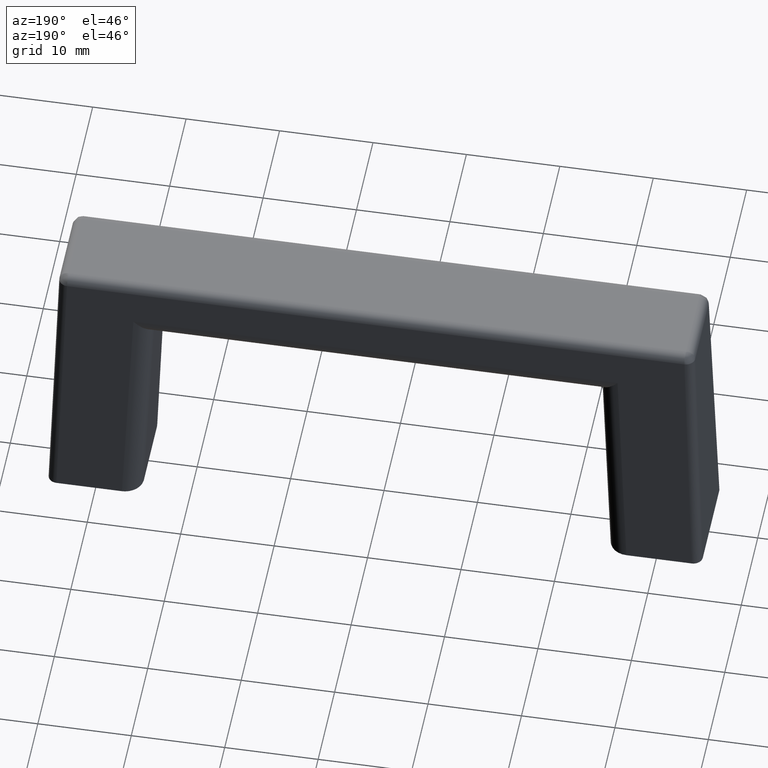
[diagram: clean part render]
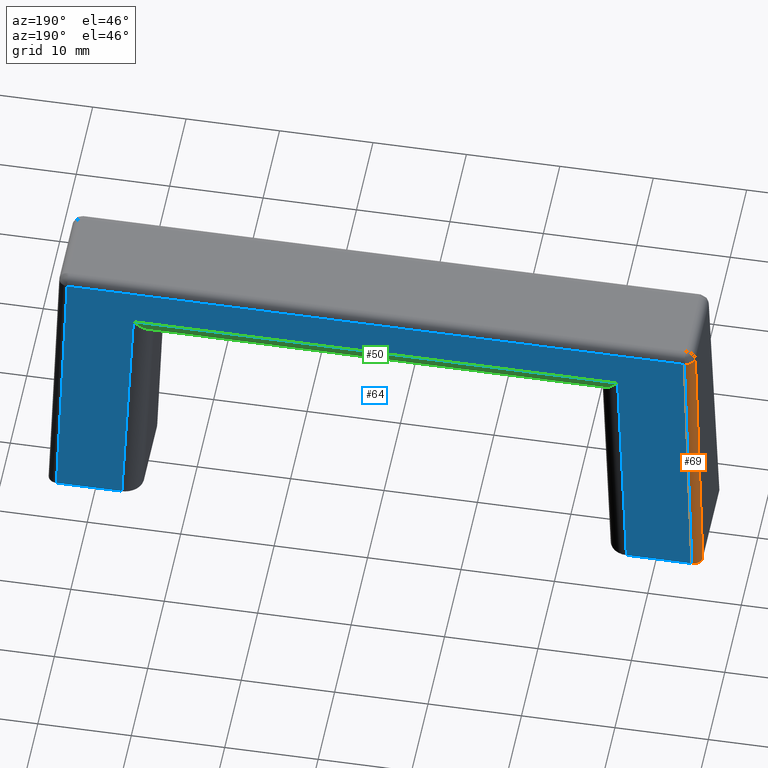
[diagram: same view with three faces highlighted in distinct colors, each labeled with its STEP entity id]
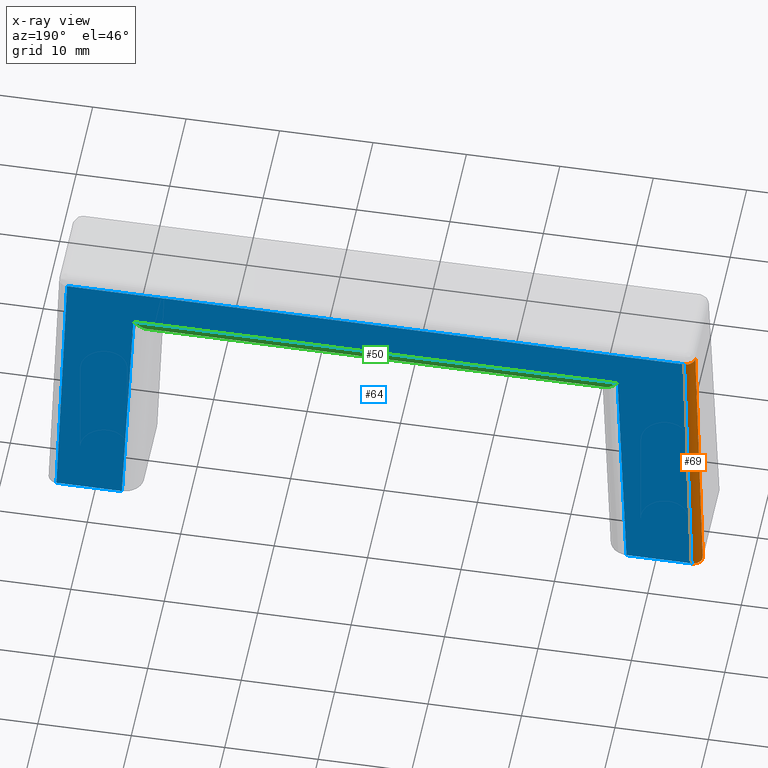
[diagram: x-ray of the same camera — body ghosted, the three highlighted faces saturated]
A machine part, auxiliary view with three faces highlighted in distinct colors.
The next image is the same camera in x-ray (body ghosted, the three faces saturated) — at least one of them is partly hidden behind the body in this view.
Their STEP definitions:

[orange] entity #69 — the highlighted cylindrical surface (edge-blend (fillet) strip) has radius 1 mm, axis along (-0.0333, 0.0333, -0.9989).
#69=ADVANCED_FACE('',(#367),#366,.T.);
#366=CYLINDRICAL_SURFACE('',#616,1.00000000000E+00);
#367=FACE_OUTER_BOUND('',#617,.T.);
#613=CARTESIAN_POINT('',(-3.40258263502E+01,5.02583157260E+00,-7.91426434088E-01));
#614=DIRECTION('',(-3.32974945828E-02,3.33043756522E-02,-9.98890432138E-01));
#615=DIRECTION('',(-2.72716042397E-02,-9.99102770483E-01,-3.24023705178E-02));
#616=AXIS2_PLACEMENT_3D('',#613,#614,#615);
#617=EDGE_LOOP('',(#789,#790,#791,#792));
#789=ORIENTED_EDGE('',*,*,#881,.F.);
#790=ORIENTED_EDGE('',*,*,#886,.F.);
#791=ORIENTED_EDGE('',*,*,#887,.F.);
#792=ORIENTED_EDGE('',*,*,#883,.F.);
#881=EDGE_CURVE('',#1357,#1364,#1365,.T.);
#883=EDGE_CURVE('',#1364,#911,#1377,.T.);
#886=EDGE_CURVE('',#1383,#1357,#1396,.T.);
#887=EDGE_CURVE('',#911,#1383,#1402,.T.);
#911=VERTEX_POINT('',#1435);
#1357=VERTEX_POINT('',#1717);
#1364=VERTEX_POINT('',#1721);
#1365=(BOUNDED_CURVE() B_SPLINE_CURVE(2,(#1722,#1723,#1724),.UNSPECIFIED.,.F.,.F.) B_SPLINE_CURVE_WITH_KNOTS((3,3),(0.00000000000E+00,1.00000000000E+00),.UNSPECIFIED.) CURVE() GEOMETRIC_REPRESENTATION_ITEM() RATIONAL_B_SPLINE_CURVE((1.00000000000E+00,7.07499181416E-01,1.00000000000E+00)) REPRESENTATION_ITEM('') );
#1377=LINE('',#1728,#1729);
#1383=VERTEX_POINT('',#1731);
#1396=LINE('',#1739,#1740);
#1402=CIRCLE('',#1745,1.00000000000E+00);
#1435=CARTESIAN_POINT('',(-3.30327445983E+01,5.03198923562E+00,2.90333228537E+01));
#1717=CARTESIAN_POINT('',(-3.50000000000E+01,5.00055513120E+00,0.00000000000E+00));
#1721=CARTESIAN_POINT('',(-3.40005553605E+01,6.00000000000E+00,0.00000000000E+00));
#1722=CARTESIAN_POINT('',(-3.50000000000E+01,5.00055513120E+00,0.00000000000E+00));
#1723=CARTESIAN_POINT('',(-3.50000000000E+01,6.00000000000E+00,0.00000000000E+00));
#1724=CARTESIAN_POINT('',(-3.40005553605E+01,6.00000000000E+00,0.00000000000E+00));
#1728=CARTESIAN_POINT('',(-3.40005553605E+01,6.00000000000E+00,0.00000000000E+00));
#1729=VECTOR('',#1730,2.90655730795E+01);
#1730=DIRECTION('',(3.32974945828E-02,-3.33043756522E-02,9.98890432138E-01));
#1731=CARTESIAN_POINT('',(-3.40321894671E+01,4.03254459612E+00,2.90333159764E+01));
#1739=CARTESIAN_POINT('',(-3.40321894671E+01,4.03254459612E+00,2.90333159764E+01));
#1740=VECTOR('',#1741,2.90655661946E+01);
#1741=DIRECTION('',(-3.32974945828E-02,3.33043756522E-02,-9.98890432138E-01));
#1742=CARTESIAN_POINT('',(-3.30327445983E+01,4.03254459612E+00,2.90000000000E+01));
#1743=DIRECTION('',(3.32974945830E-02,-3.33043756524E-02,9.98890432138E-01));
#1744=DIRECTION('',(-1.42108547152E-14,-9.99444639498E-01,-3.33228536851E-02));
#1745=AXIS2_PLACEMENT_3D('',#1742,#1743,#1744);

[blue] entity #64 — the highlighted planar face has unit normal (-0, 0.9994, 0.0333).
#64=ADVANCED_FACE('',(#317),#316,.T.);
#316=PLANE('',#591);
#317=FACE_OUTER_BOUND('',#592,.T.);
#588=CARTESIAN_POINT('',(-4.08006664326E+01,6.09680107644E+00,-2.90333228537E+00));
#589=DIRECTION('',(-2.37366664036E-17,9.99444639499E-01,3.33228536849E-02));
#590=DIRECTION('',(-9.62964972194E-35,-3.33228536849E-02,9.99444639499E-01));
#591=AXIS2_PLACEMENT_3D('',#588,#589,#590);
#592=EDGE_LOOP('',(#763,#764,#765,#766,#767,#768,#769,#770));
#763=ORIENTED_EDGE('',*,*,#846,.T.);
#764=ORIENTED_EDGE('',*,*,#843,.T.);
#765=ORIENTED_EDGE('',*,*,#882,.T.);
#766=ORIENTED_EDGE('',*,*,#883,.T.);
#767=ORIENTED_EDGE('',*,*,#815,.T.);
#768=ORIENTED_EDGE('',*,*,#818,.T.);
#769=ORIENTED_EDGE('',*,*,#875,.T.);
#770=ORIENTED_EDGE('',*,*,#850,.T.);
#815=EDGE_CURVE('',#911,#890,#925,.T.);
#818=EDGE_CURVE('',#890,#938,#945,.T.);
#843=EDGE_CURVE('',#1094,#1109,#1116,.T.);
#846=EDGE_CURVE('',#1136,#1094,#1137,.T.);
#850=EDGE_CURVE('',#1163,#1136,#1164,.T.);
#875=EDGE_CURVE('',#938,#1163,#1324,.T.);
#882=EDGE_CURVE('',#1109,#1364,#1371,.T.);
#883=EDGE_CURVE('',#1364,#911,#1377,.T.);
#890=VERTEX_POINT('',#1420);
#911=VERTEX_POINT('',#1435);
#925=LINE('',#1444,#1445);
#938=VERTEX_POINT('',#1451);
#945=LINE('',#1455,#1456);
#1094=VERTEX_POINT('',#1555);
#1109=VERTEX_POINT('',#1566);
#1116=LINE('',#1572,#1573);
#1136=VERTEX_POINT('',#1584);
#1137=LINE('',#1585,#1586);
#1163=VERTEX_POINT('',#1602);
#1164=LINE('',#1603,#1604);
#1324=LINE('',#1696,#1697);
#1364=VERTEX_POINT('',#1721);
#1371=LINE('',#1725,#1726);
#1377=LINE('',#1728,#1729);
#1420=CARTESIAN_POINT('',(3.30327445983E+01,5.03198923562E+00,2.90333228537E+01));
#1435=CARTESIAN_POINT('',(-3.30327445983E+01,5.03198923562E+00,2.90333228537E+01));
#1444=CARTESIAN_POINT('',(-3.30327445983E+01,5.03198923562E+00,2.90333228537E+01));
#1445=VECTOR('',#1446,6.60654891966E+01);
#1446=DIRECTION('',(1.00000000000E+00,0.00000000000E+00,0.00000000000E+00));
#1451=CARTESIAN_POINT('',(3.40005553605E+01,6.00000000000E+00,0.00000000000E+00));
#1455=CARTESIAN_POINT('',(3.30327445983E+01,5.03198923562E+00,2.90333228537E+01));
#1456=VECTOR('',#1457,2.90655730795E+01);
#1457=DIRECTION('',(3.32974945828E-02,3.33043756522E-02,-9.98890432138E-01));
#1555=CARTESIAN_POINT('',(-2.59149329449E+01,5.16424368668E+00,2.50666457074E+01));
#1566=CARTESIAN_POINT('',(-2.70047871061E+01,6.00000000000E+00,0.00000000000E+00));
#1572=CARTESIAN_POINT('',(-2.59149329449E+01,5.16424368668E+00,2.50666457074E+01));
#1573=VECTOR('',#1574,2.51042426240E+01);
#1574=DIRECTION('',(-4.34131464355E-02,3.32914370627E-02,-9.98502368017E-01));
#1584=CARTESIAN_POINT('',(2.59149329449E+01,5.16424368668E+00,2.50666457074E+01));
#1585=CARTESIAN_POINT('',(2.59149329449E+01,5.16424368668E+00,2.50666457074E+01));
#1586=VECTOR('',#1587,5.18298658898E+01);
#1587=DIRECTION('',(-1.00000000000E+00,0.00000000000E+00,0.00000000000E+00));
#1602=CARTESIAN_POINT('',(2.70047871061E+01,6.00000000000E+00,0.00000000000E+00));
#1603=CARTESIAN_POINT('',(2.70047871061E+01,6.00000000000E+00,0.00000000000E+00));
#1604=VECTOR('',#1605,2.51042426240E+01);
#1605=DIRECTION('',(-4.34131464355E-02,-3.32914370627E-02,9.98502368017E-01));
#1696=CARTESIAN_POINT('',(3.40005553605E+01,6.00000000000E+00,0.00000000000E+00));
#1697=VECTOR('',#1698,6.99576825438E+00);
#1698=DIRECTION('',(-1.00000000000E+00,0.00000000000E+00,0.00000000000E+00));
#1721=CARTESIAN_POINT('',(-3.40005553605E+01,6.00000000000E+00,0.00000000000E+00));
#1725=CARTESIAN_POINT('',(-2.70047871061E+01,6.00000000000E+00,0.00000000000E+00));
#1726=VECTOR('',#1727,6.99576825438E+00);
#1727=DIRECTION('',(-1.00000000000E+00,0.00000000000E+00,0.00000000000E+00));
#1728=CARTESIAN_POINT('',(-3.40005553605E+01,6.00000000000E+00,0.00000000000E+00));
#1729=VECTOR('',#1730,2.90655730795E+01);
#1730=DIRECTION('',(3.32974945828E-02,-3.33043756522E-02,9.98890432138E-01));

[green] entity #50 — the highlighted cylindrical surface (edge-blend (fillet) strip) has radius 2 mm, axis along (1, -0, 0).
#50=ADVANCED_FACE('',(#175),#174,.T.);
#174=CYLINDRICAL_SURFACE('',#495,2.00000000000E+00);
#175=FACE_OUTER_BOUND('',#496,.T.);
#492=CARTESIAN_POINT('',(2.72430732583E+01,3.16535440768E+00,2.50000000000E+01));
#493=DIRECTION('',(1.00000000000E+00,-1.46674527758E-15,2.61263331196E-15));
#494=DIRECTION('',(-1.30451205393E-15,-9.98134798422E-01,-6.10485395349E-02));
#495=AXIS2_PLACEMENT_3D('',#492,#493,#494);
#496=EDGE_LOOP('',(#690,#691,#692,#693,#694,#695));
#690=ORIENTED_EDGE('',*,*,#844,.F.);
#691=ORIENTED_EDGE('',*,*,#845,.F.);
#692=ORIENTED_EDGE('',*,*,#840,.F.);
#693=ORIENTED_EDGE('',*,*,#846,.F.);
#694=ORIENTED_EDGE('',*,*,#847,.T.);
#695=ORIENTED_EDGE('',*,*,#848,.F.);
#840=EDGE_CURVE('',#1094,#1095,#1096,.T.);
#844=EDGE_CURVE('',#1122,#1123,#1124,.T.);
#845=EDGE_CURVE('',#1095,#1122,#1130,.T.);
#846=EDGE_CURVE('',#1136,#1094,#1137,.T.);
#847=EDGE_CURVE('',#1136,#1143,#1144,.T.);
#848=EDGE_CURVE('',#1123,#1143,#1150,.T.);
#1094=VERTEX_POINT('',#1555);
#1095=VERTEX_POINT('',#1556);
#1096=(BOUNDED_CURVE() B_SPLINE_CURVE(2,(#1557,#1558,#1559,#1560,#1561),.UNSPECIFIED.,.F.,.F.) B_SPLINE_CURVE_WITH_KNOTS((3,2,3),(0.00000000000E+00,5.00000000000E-01,1.00000000000E+00),.UNSPECIFIED.) CURVE() GEOMETRIC_REPRESENTATION_ITEM() RATIONAL_B_SPLINE_CURVE((1.00000000000E+00,9.23741001656E-01,1.00000000000E+00,9.23741001656E-01,1.00000000000E+00)) REPRESENTATION_ITEM('') );
#1122=VERTEX_POINT('',#1575);
#1123=VERTEX_POINT('',#1576);
#1124=LINE('',#1577,#1578);
#1130=CIRCLE('',#1583,1.99811747120E+00);
#1136=VERTEX_POINT('',#1584);
#1137=LINE('',#1585,#1586);
#1143=VERTEX_POINT('',#1588);
#1144=(BOUNDED_CURVE() B_SPLINE_CURVE(2,(#1589,#1590,#1591,#1592,#1593),.UNSPECIFIED.,.F.,.F.) B_SPLINE_CURVE_WITH_KNOTS((3,2,3),(0.00000000000E+00,5.00000000000E-01,1.00000000000E+00),.UNSPECIFIED.) CURVE() GEOMETRIC_REPRESENTATION_ITEM() RATIONAL_B_SPLINE_CURVE((1.00000000000E+00,9.23741001656E-01,1.00000000000E+00,9.23741001656E-01,1.00000000000E+00)) REPRESENTATION_ITEM('') );
#1150=CIRCLE('',#1597,1.99811423656E+00);
#1555=CARTESIAN_POINT('',(-2.59149329449E+01,5.16424368668E+00,2.50666457074E+01));
#1556=CARTESIAN_POINT('',(-2.39999558109E+01,3.22910674841E+00,2.30010163485E+01));
#1557=CARTESIAN_POINT('',(-2.59149329449E+01,5.16424368668E+00,2.50666457074E+01));
#1558=CARTESIAN_POINT('',(-2.51209105153E+01,5.19187743031E+00,2.42378309733E+01));
#1559=CARTESIAN_POINT('',(-2.45598585085E+01,4.62491892973E+00,2.36326407180E+01));
#1560=CARTESIAN_POINT('',(-2.39988065016E+01,4.05796042915E+00,2.30274504628E+01));
#1561=CARTESIAN_POINT('',(-2.39999558109E+01,3.22910674841E+00,2.30010163485E+01));
#1575=CARTESIAN_POINT('',(-2.40000000000E+01,3.16535440768E+00,2.30000000000E+01));
#1576=CARTESIAN_POINT('',(2.40000000000E+01,3.16535440768E+00,2.30000000000E+01));
#1577=CARTESIAN_POINT('',(-2.40000000000E+01,3.16535440768E+00,2.30000000000E+01));
#1578=VECTOR('',#1579,4.80000000000E+01);
#1579=DIRECTION('',(1.00000000000E+00,0.00000000000E+00,0.00000000000E+00));
#1580=CARTESIAN_POINT('',(-2.39132073230E+01,3.16535430444E+00,2.49962315641E+01));
#1581=DIRECTION('',(-9.99056158348E-01,-2.64215407365E-12,4.34372244303E-02));
#1582=DIRECTION('',(4.34151090566E-02,-3.19062541974E-02,9.98547504753E-01));
#1583=AXIS2_PLACEMENT_3D('',#1580,#1581,#1582);
#1584=CARTESIAN_POINT('',(2.59149329449E+01,5.16424368668E+00,2.50666457074E+01));
#1585=CARTESIAN_POINT('',(2.59149329449E+01,5.16424368668E+00,2.50666457074E+01));
#1586=VECTOR('',#1587,5.18298658898E+01);
#1587=DIRECTION('',(-1.00000000000E+00,0.00000000000E+00,0.00000000000E+00));
#1588=CARTESIAN_POINT('',(2.39999558109E+01,3.22910674841E+00,2.30010163485E+01));
#1589=CARTESIAN_POINT('',(2.59149329449E+01,5.16424368668E+00,2.50666457074E+01));
#1590=CARTESIAN_POINT('',(2.51209105153E+01,5.19187743031E+00,2.42378309733E+01));
#1591=CARTESIAN_POINT('',(2.45598585085E+01,4.62491892973E+00,2.36326407180E+01));
#1592=CARTESIAN_POINT('',(2.39988065016E+01,4.05796042915E+00,2.30274504628E+01));
#1593=CARTESIAN_POINT('',(2.39999558109E+01,3.22910674841E+00,2.30010163485E+01));
#1594=CARTESIAN_POINT('',(2.39132074638E+01,3.16535440768E+00,2.49962283334E+01));
#1595=DIRECTION('',(9.99056158356E-01,-2.22148647105E-13,4.34372242584E-02));
#1596=DIRECTION('',(-4.34372242584E-02,-9.91896026166E-14,9.99056158356E-01));
#1597=AXIS2_PLACEMENT_3D('',#1594,#1595,#1596);